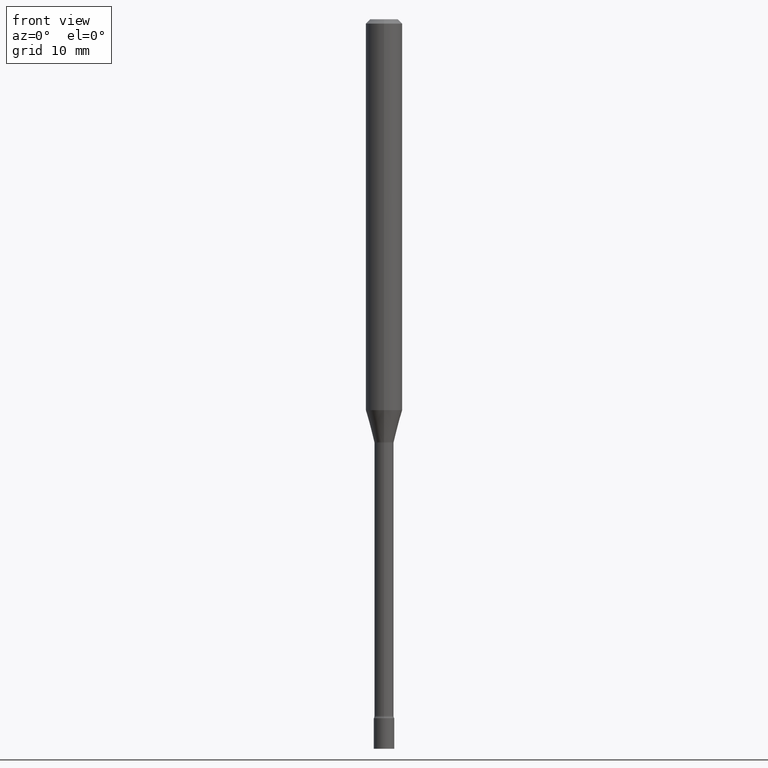
[diagram: clean part render]
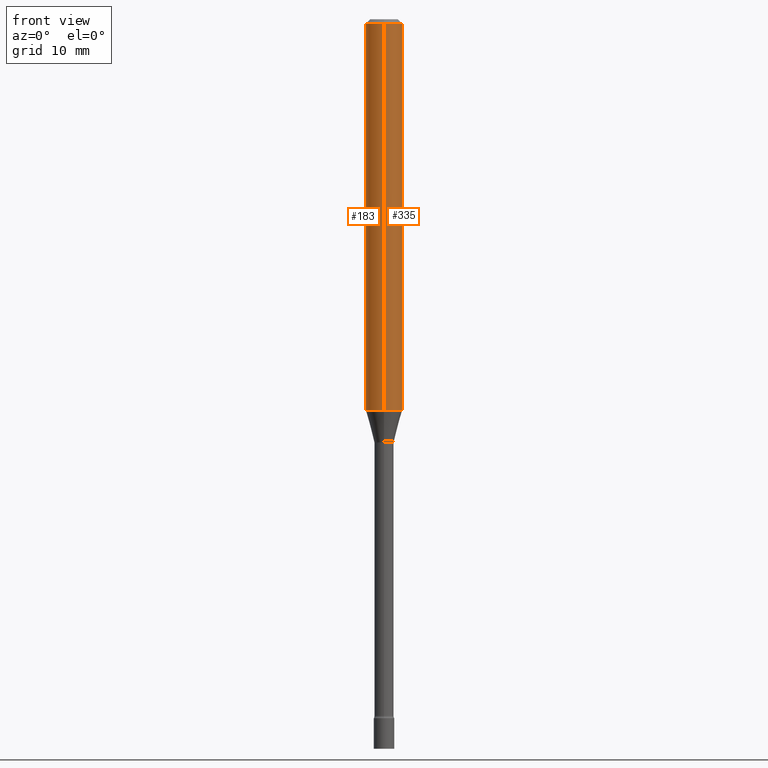
[diagram: same view with one multi-face feature highlighted, each face labeled with its STEP entity id]
A machine part, front view. The highlighted faces form ONE feature: a constant-radius fillet chain: 2 tangent blend faces with common blend radius 1.5875 mm. The faces share edges in the B-rep.
Their STEP definitions:
[1] entity #335 (Cylinder):
#16 = AXIS2_PLACEMENT_3D ( 'NONE', #336, #23, #445 ) ;
#23 = DIRECTION ( 'NONE',  ( -2.445500635031716319E-29, 3.491435758123258259E-15, 1.000000000000000000 ) ) ;
#27 = ORIENTED_EDGE ( 'NONE', *, *, #249, .T. ) ;
#32 = CARTESIAN_POINT ( 'NONE',  ( -4.364351673553916201E-16, -0.06250000000000000000, 2.182147348827036166E-16 ) ) ;
#42 = DIRECTION ( 'NONE',  ( -2.445500635031716319E-29, 3.491435758123258259E-15, 1.000000000000000000 ) ) ;
#63 = CYLINDRICAL_SURFACE ( 'NONE', #16, 0.06250000000000000000 ) ;
#76 = LINE ( 'NONE', #399, #110 ) ;
#78 = CARTESIAN_POINT ( 'NONE',  ( -4.364351673553590303E-16, -0.06250000000000470457, -1.339531296095961332 ) ) ;
#83 = EDGE_CURVE ( 'NONE', #371, #292, #385, .T. ) ;
#87 = AXIS2_PLACEMENT_3D ( 'NONE', #392, #42, #203 ) ;
#93 = ORIENTED_EDGE ( 'NONE', *, *, #175, .T. ) ;
#108 = ORIENTED_EDGE ( 'NONE', *, *, #83, .F. ) ;
#110 = VECTOR ( 'NONE', #213, 39.37007874015748143 ) ;
#126 = CARTESIAN_POINT ( 'NONE',  ( 3.668250952547581782E-31, -5.237153637184897940E-17, -0.01500000000000003067 ) ) ;
#128 = CIRCLE ( 'NONE', #87, 0.06250000000000000000 ) ;
#131 = CARTESIAN_POINT ( 'NONE',  ( 4.440892098500955511E-16, 0.06249999999999995143, -0.01500000000000024751 ) ) ;
#175 = EDGE_CURVE ( 'NONE', #305, #406, #76, .T. ) ;
#192 = DIRECTION ( 'NONE',  ( -2.445500635031716319E-29, 3.491435758123258259E-15, 1.000000000000000000 ) ) ;
#203 = DIRECTION ( 'NONE',  ( -6.982962677686265922E-15, -1.000000000000000000, 4.370956789862821150E-15 ) ) ;
#213 = DIRECTION ( 'NONE',  ( -2.445500635031716319E-29, 3.491435758123258259E-15, 1.000000000000000000 ) ) ;
#244 = AXIS2_PLACEMENT_3D ( 'NONE', #126, #286, #436 ) ;
#249 = EDGE_CURVE ( 'NONE', #371, #305, #128, .T. ) ;
#269 = EDGE_CURVE ( 'NONE', #292, #406, #491, .T. ) ;
#286 = DIRECTION ( 'NONE',  ( -2.445500635031716319E-29, 3.491435758123258259E-15, 1.000000000000000000 ) ) ;
#292 = VERTEX_POINT ( 'NONE', #493 ) ;
#305 = VERTEX_POINT ( 'NONE', #449 ) ;
#335 = ADVANCED_FACE ( 'NONE', ( #456 ), #63, .T. ) ;
#336 = CARTESIAN_POINT ( 'NONE',  ( 0.000000000000000000, 0.000000000000000000, 0.000000000000000000 ) ) ;
#371 = VERTEX_POINT ( 'NONE', #78 ) ;
#385 = LINE ( 'NONE', #32, #460 ) ;
#392 = CARTESIAN_POINT ( 'NONE',  ( 3.275824635247532374E-29, -4.676887466314633364E-15, -1.339531296095961554 ) ) ;
#399 = CARTESIAN_POINT ( 'NONE',  ( 4.440892098500625669E-16, 0.06250000000000000000, -2.182147348827036166E-16 ) ) ;
#406 = VERTEX_POINT ( 'NONE', #131 ) ;
#436 = DIRECTION ( 'NONE',  ( -6.982962677686265922E-15, -1.000000000000000000, 3.483106191921935554E-15 ) ) ;
#445 = DIRECTION ( 'NONE',  ( -6.982962677686265922E-15, -1.000000000000000000, 3.491435758123257865E-15 ) ) ;
#449 = CARTESIAN_POINT ( 'NONE',  ( 4.440892098500949595E-16, 0.06249999999999528849, -1.339531296095961999 ) ) ;
#456 = FACE_OUTER_BOUND ( 'NONE', #507, .T. ) ;
#460 = VECTOR ( 'NONE', #192, 39.37007874015748143 ) ;
#491 = CIRCLE ( 'NONE', #244, 0.06250000000000000000 ) ;
#493 = CARTESIAN_POINT ( 'NONE',  ( -4.364351673553912750E-16, -0.06250000000000005551, -0.01499999999999981209 ) ) ;
#503 = ORIENTED_EDGE ( 'NONE', *, *, #269, .F. ) ;
#507 = EDGE_LOOP ( 'NONE', ( #27, #93, #503, #108 ) ) ;
[2] entity #183 (Cylinder):
#3 = CARTESIAN_POINT ( 'NONE',  ( 3.275824635247532374E-29, -4.676887466314633364E-15, -1.339531296095961554 ) ) ;
#8 = CYLINDRICAL_SURFACE ( 'NONE', #458, 0.06250000000000000000 ) ;
#32 = CARTESIAN_POINT ( 'NONE',  ( -4.364351673553916201E-16, -0.06250000000000000000, 2.182147348827036166E-16 ) ) ;
#43 = CARTESIAN_POINT ( 'NONE',  ( 0.000000000000000000, 0.000000000000000000, 0.000000000000000000 ) ) ;
#76 = LINE ( 'NONE', #399, #110 ) ;
#78 = CARTESIAN_POINT ( 'NONE',  ( -4.364351673553590303E-16, -0.06250000000000470457, -1.339531296095961332 ) ) ;
#83 = EDGE_CURVE ( 'NONE', #371, #292, #385, .T. ) ;
#110 = VECTOR ( 'NONE', #213, 39.37007874015748143 ) ;
#115 = ORIENTED_EDGE ( 'NONE', *, *, #175, .F. ) ;
#131 = CARTESIAN_POINT ( 'NONE',  ( 4.440892098500955511E-16, 0.06249999999999995143, -0.01500000000000024751 ) ) ;
#147 = EDGE_CURVE ( 'NONE', #406, #292, #287, .T. ) ;
#154 = ORIENTED_EDGE ( 'NONE', *, *, #444, .T. ) ;
#170 = DIRECTION ( 'NONE',  ( -6.982962677686265922E-15, -1.000000000000000000, 3.491435758123257865E-15 ) ) ;
#175 = EDGE_CURVE ( 'NONE', #305, #406, #76, .T. ) ;
#183 = ADVANCED_FACE ( 'NONE', ( #235 ), #8, .T. ) ;
#192 = DIRECTION ( 'NONE',  ( -2.445500635031716319E-29, 3.491435758123258259E-15, 1.000000000000000000 ) ) ;
#213 = DIRECTION ( 'NONE',  ( -2.445500635031716319E-29, 3.491435758123258259E-15, 1.000000000000000000 ) ) ;
#229 = EDGE_LOOP ( 'NONE', ( #115, #154, #441, #442 ) ) ;
#235 = FACE_OUTER_BOUND ( 'NONE', #229, .T. ) ;
#243 = DIRECTION ( 'NONE',  ( -2.445500635031716319E-29, 3.491435758123258259E-15, 1.000000000000000000 ) ) ;
#254 = CARTESIAN_POINT ( 'NONE',  ( 3.668250952547581782E-31, -5.237153637184897940E-17, -0.01500000000000003067 ) ) ;
#266 = CIRCLE ( 'NONE', #393, 0.06250000000000000000 ) ;
#287 = CIRCLE ( 'NONE', #489, 0.06250000000000000000 ) ;
#292 = VERTEX_POINT ( 'NONE', #493 ) ;
#305 = VERTEX_POINT ( 'NONE', #449 ) ;
#319 = DIRECTION ( 'NONE',  ( -6.982962677686265922E-15, -1.000000000000000000, 4.370956789862821150E-15 ) ) ;
#320 = DIRECTION ( 'NONE',  ( -2.445500635031716319E-29, 3.491435758123258259E-15, 1.000000000000000000 ) ) ;
#355 = DIRECTION ( 'NONE',  ( -2.445500635031716319E-29, 3.491435758123258259E-15, 1.000000000000000000 ) ) ;
#371 = VERTEX_POINT ( 'NONE', #78 ) ;
#385 = LINE ( 'NONE', #32, #460 ) ;
#393 = AXIS2_PLACEMENT_3D ( 'NONE', #3, #355, #319 ) ;
#399 = CARTESIAN_POINT ( 'NONE',  ( 4.440892098500625669E-16, 0.06250000000000000000, -2.182147348827036166E-16 ) ) ;
#406 = VERTEX_POINT ( 'NONE', #131 ) ;
#441 = ORIENTED_EDGE ( 'NONE', *, *, #83, .T. ) ;
#442 = ORIENTED_EDGE ( 'NONE', *, *, #147, .F. ) ;
#444 = EDGE_CURVE ( 'NONE', #305, #371, #266, .T. ) ;
#449 = CARTESIAN_POINT ( 'NONE',  ( 4.440892098500949595E-16, 0.06249999999999528849, -1.339531296095961999 ) ) ;
#458 = AXIS2_PLACEMENT_3D ( 'NONE', #43, #243, #170 ) ;
#460 = VECTOR ( 'NONE', #192, 39.37007874015748143 ) ;
#489 = AXIS2_PLACEMENT_3D ( 'NONE', #254, #320, #511 ) ;
#493 = CARTESIAN_POINT ( 'NONE',  ( -4.364351673553912750E-16, -0.06250000000000005551, -0.01499999999999981209 ) ) ;
#511 = DIRECTION ( 'NONE',  ( -6.982962677686265922E-15, -1.000000000000000000, 3.483106191921935554E-15 ) ) ;